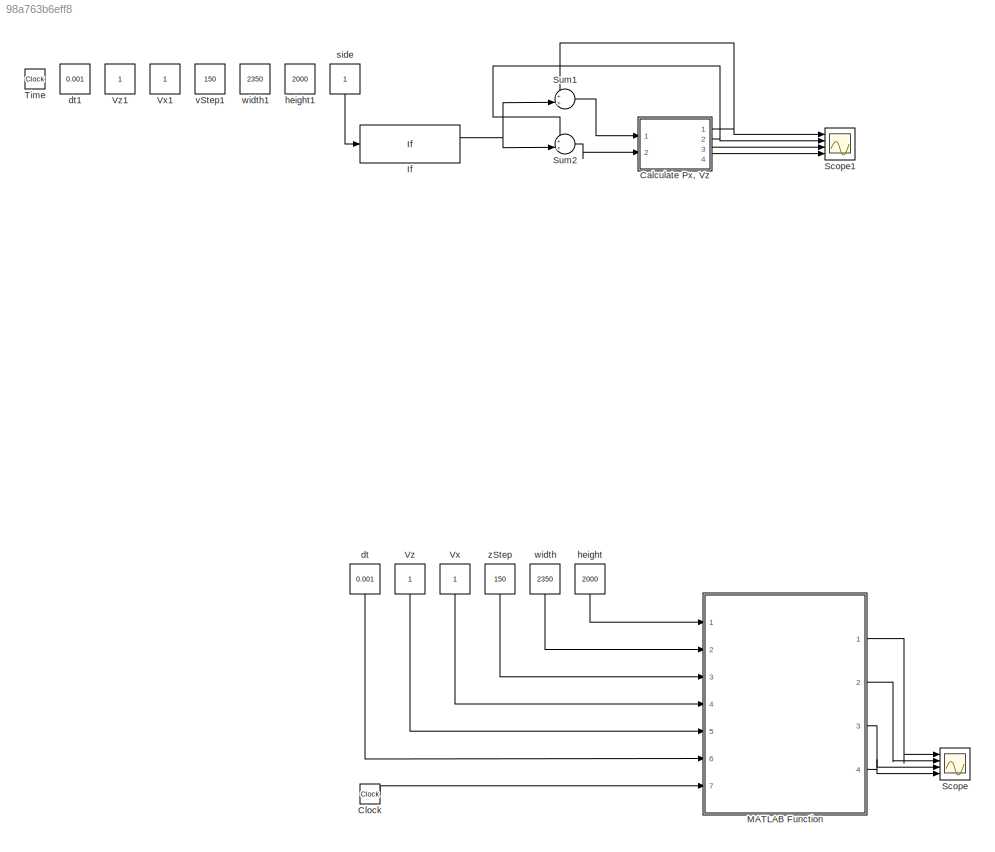
MODEL slx_98a763b6eff8
KIND model
CONFIG AbsTol = auto
CONFIG EnableMultiTasking = off
CONFIG FixedStep = auto
CONFIG MaxStep = auto
CONFIG MinStep = auto
CONFIG RelTol = 1e-3
CONFIG SampleTimeConstraint = Unconstrained
CONFIG SolverName = VariableStepAuto
CONFIG StartTime = 0.0
CONFIG StopTime = 10
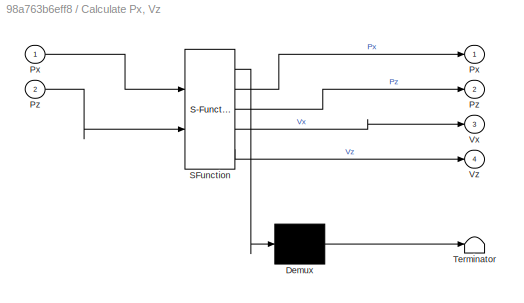
BLOCK [SubSystem] Calculate Px, Vz
  Commented = on
  ErrorFcn = Stateflow.Translate.translate
  PermitHierarchicalResolution = ExplicitOnly
  Ports = [2, 4]
  RequestExecContextInheritance = off
  SFBlockType = MATLAB Function
  TreatAsAtomicUnit = on
BLOCK [Demux] Calculate Px, Vz/ Demux 
  Outputs = 1
  Ports = [1, 1]
BLOCK [S-Function] Calculate Px, Vz/ SFunction 
  EnableBusSupport = on
  FunctionName = sf_sfun
  PortCounts = [2 5]
  Ports = [2, 5]
  SFcnIsStateOwnerBlock = off
  SFunctionDeploymentMode = off
  Tag = Stateflow S-Function 1
BLOCK [Terminator] Calculate Px, Vz/ Terminator 
BLOCK [Outport] Calculate Px, Vz/Px
BLOCK [Inport] Calculate Px, Vz/Px 
BLOCK [Outport] Calculate Px, Vz/Pz
  Port = 2
BLOCK [Inport] Calculate Px, Vz/Pz 
  Port = 2
BLOCK [Outport] Calculate Px, Vz/Vx
  Port = 3
BLOCK [Outport] Calculate Px, Vz/Vz
  Port = 4
BLOCK [Clock] Clock
  Decimation = 2
BLOCK [If] If
  Commented = on
  IfExpression = u1 == 1
  Ports = [1, 2]
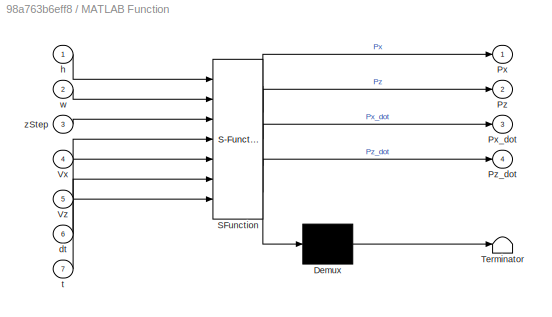
BLOCK [SubSystem] MATLAB Function
  ErrorFcn = Stateflow.Translate.translate
  PermitHierarchicalResolution = ExplicitOnly
  Ports = [7, 4]
  RequestExecContextInheritance = off
  SFBlockType = MATLAB Function
  TreatAsAtomicUnit = on
BLOCK [Demux] MATLAB Function/ Demux 
  Outputs = 1
  Ports = [1, 1]
BLOCK [S-Function] MATLAB Function/ SFunction 
  EnableBusSupport = on
  FunctionName = sf_sfun
  PortCounts = [7 5]
  Ports = [7, 5]
  SFcnIsStateOwnerBlock = off
  SFunctionDeploymentMode = off
  Tag = Stateflow S-Function 2
BLOCK [Terminator] MATLAB Function/ Terminator 
BLOCK [Outport] MATLAB Function/Px
BLOCK [Outport] MATLAB Function/Px_dot
  Port = 3
BLOCK [Outport] MATLAB Function/Pz
  Port = 2
BLOCK [Outport] MATLAB Function/Pz_dot
  Port = 4
BLOCK [Inport] MATLAB Function/Vx
  Port = 4
BLOCK [Inport] MATLAB Function/Vz
  Port = 5
BLOCK [Inport] MATLAB Function/dt
  Port = 6
BLOCK [Inport] MATLAB Function/h
BLOCK [Inport] MATLAB Function/t
  Port = 7
BLOCK [Inport] MATLAB Function/w
  Port = 2
BLOCK [Inport] MATLAB Function/zStep
  Port = 3
BLOCK [Scope] Scope
  Floating = off
  NumInputPorts = 4
  Ports = [4]
  ScopeSpecificationString = Simulink.scopes.TimeScopeBlockCfg('CurrentConfiguration', extmgr.ConfigurationSet(extmgr.Configuration('Core','General UI',true),extmgr.Configuration('Core','Source UI',true),extmgr.Configuration('Sources','WiredSimulink',true),extmgr.Configuration('Visuals','Time Domain',true,'SerializedDisplays',{struct('MinYLimReal','-0.125','MaxYLimReal','1.125','YLabelReal','','MinYLimMag','0.00000','MaxYLimM...<+1477ch>
BLOCK [Scope] Scope1
  Commented = on
  Floating = off
  NumInputPorts = 4
  Ports = [4]
  ScopeSpecificationString = Simulink.scopes.TimeScopeBlockCfg('CurrentConfiguration', extmgr.ConfigurationSet(extmgr.Configuration('Core','General UI',true),extmgr.Configuration('Core','Source UI',true),extmgr.Configuration('Sources','WiredSimulink',true,'DataLoggingVariableName','ScopeData1'),extmgr.Configuration('Visuals','Time Domain',true,'SerializedDisplays',{struct('MinYLimReal','-10','MaxYLimReal','10','YLabelReal',''...<+1343ch>
BLOCK [Sum] Sum1
  Commented = on
  Inputs = ++|
  NameLocation = top
  Ports = [2, 1]
BLOCK [Sum] Sum2
  Commented = on
  Inputs = ++|
  NameLocation = top
  Ports = [2, 1]
BLOCK [Clock] Time
  Commented = on
  Decimation = 1
  NameLocation = top
BLOCK [Constant] Vx
  NameLocation = top
BLOCK [Constant] Vx1
  Commented = on
  NameLocation = top
BLOCK [Constant] Vz
  NameLocation = top
BLOCK [Constant] Vz1
  Commented = on
  NameLocation = top
BLOCK [Constant] dt
  NameLocation = top
  Value = 0.001
BLOCK [Constant] dt1
  Commented = on
  NameLocation = top
  Value = 0.001
BLOCK [Constant] height
  NameLocation = top
  Value = 2000
BLOCK [Constant] height1
  Commented = on
  NameLocation = top
  Value = 2000
BLOCK [Constant] side
  Commented = on
  NameLocation = top
BLOCK [Constant] vStep1
  Commented = on
  NameLocation = top
  Value = 150
BLOCK [Constant] width
  NameLocation = top
  Value = 2350
BLOCK [Constant] width1
  Commented = on
  NameLocation = top
  Value = 2350
BLOCK [Constant] zStep
  NameLocation = top
  Value = 150
NET Calculate Px, Vz:1 -> Scope1:1, Sum1:1
NET Calculate Px, Vz:2 -> Scope1:2, Sum2:1
LINE Calculate Px, Vz:3 -> Scope1:3
LINE Calculate Px, Vz:4 -> Scope1:4
LINE Clock:1 -> MATLAB Function:7
NET If:1 -> Sum1:2, Sum2:2
LINE MATLAB Function:1 -> Scope:1
LINE MATLAB Function:2 -> Scope:2
LINE MATLAB Function:3 -> Scope:3
LINE MATLAB Function:4 -> Scope:4
LINE Sum1:1 -> Calculate Px, Vz:1
LINE Sum2:1 -> Calculate Px, Vz:2
LINE Vx:1 -> MATLAB Function:4
LINE Vz:1 -> MATLAB Function:5
LINE dt:1 -> MATLAB Function:6
LINE height:1 -> MATLAB Function:1
LINE side:1 -> If:1
LINE width:1 -> MATLAB Function:2
LINE zStep:1 -> MATLAB Function:3
note: NET lines group one-source signal fan-out (src -> all destinations, sorted); 1:1 wires keep LINE
CHART Calculate Px, Vz states=1 transitions=1
  STATE_LABEL 'eML_blk_kernel()'
  STATE_LABEL 'SCRIPT:\nfunction [Px, Pz, Vx, Vz]= fcn(Px, Pz)\n\nPx = Px + 1\nPz = Pz + 1\nVx = 1\nVz =1 '
CHART MATLAB Function states=1 transitions=1
  STATE_LABEL 'eML_blk_kernel()'
  STATE_LABEL 'SCRIPT:\nfunction [Px, Pz, Px_dot, Pz_dot] = trajGen(h, w, zStep, Vx, Vz, dt, t)\n\nPx = 0\nif(t <= 2)\nPx = tanh(t)\nelseif(t >= 2 && t <= 6)\nPx = tanh(t)\nelseif(t >= 6 && t < 10)\nPx = tanh(t)\nend\n\n\n\nPz=0;\nPx_dot=0;\nPz_dot=0;\nend'
CHART  states=0 transitions=0
CHART  states=0 transitions=0
